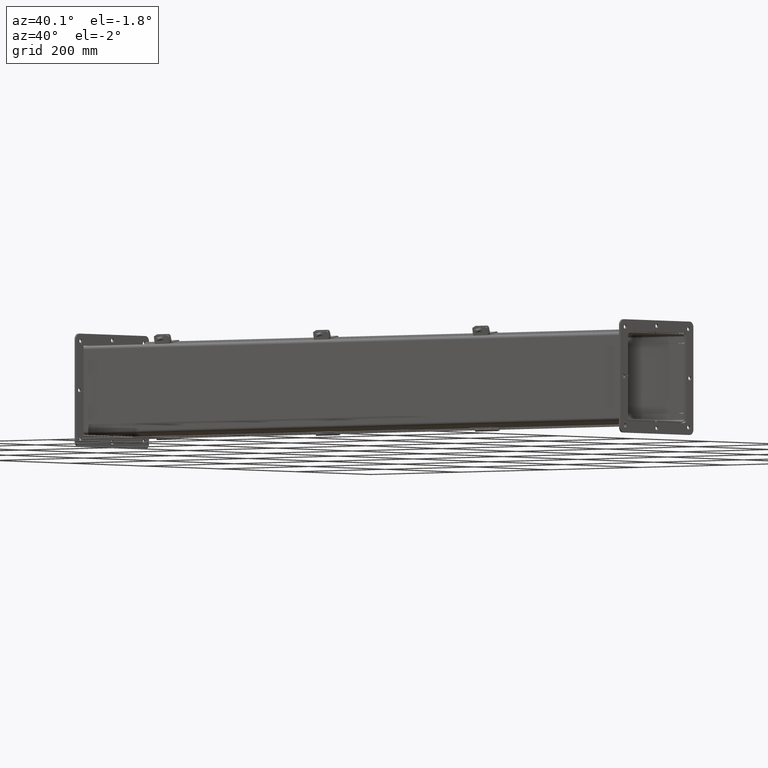
[diagram: clean part render]
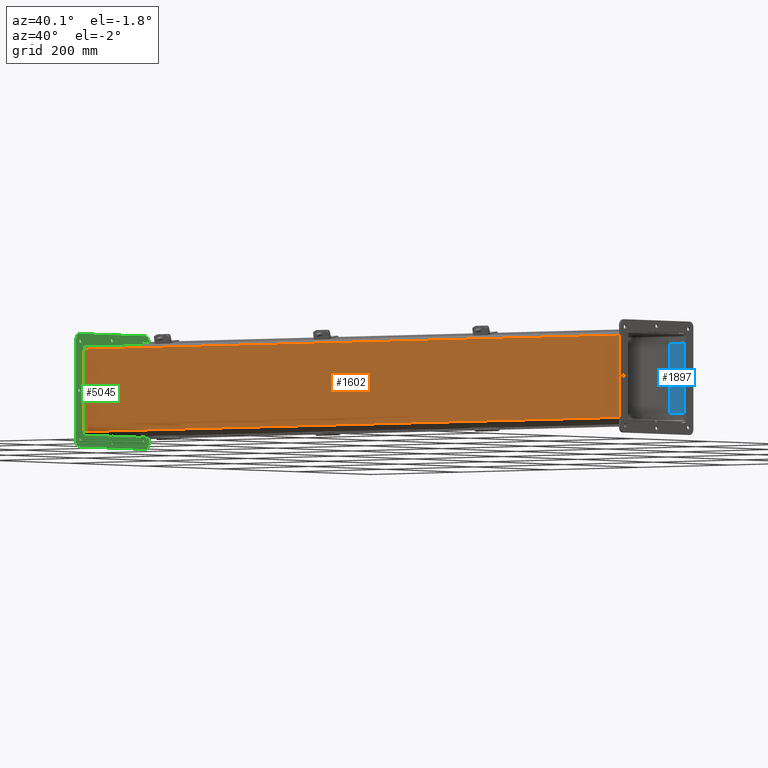
[diagram: same view with three faces highlighted in distinct colors, each labeled with its STEP entity id]
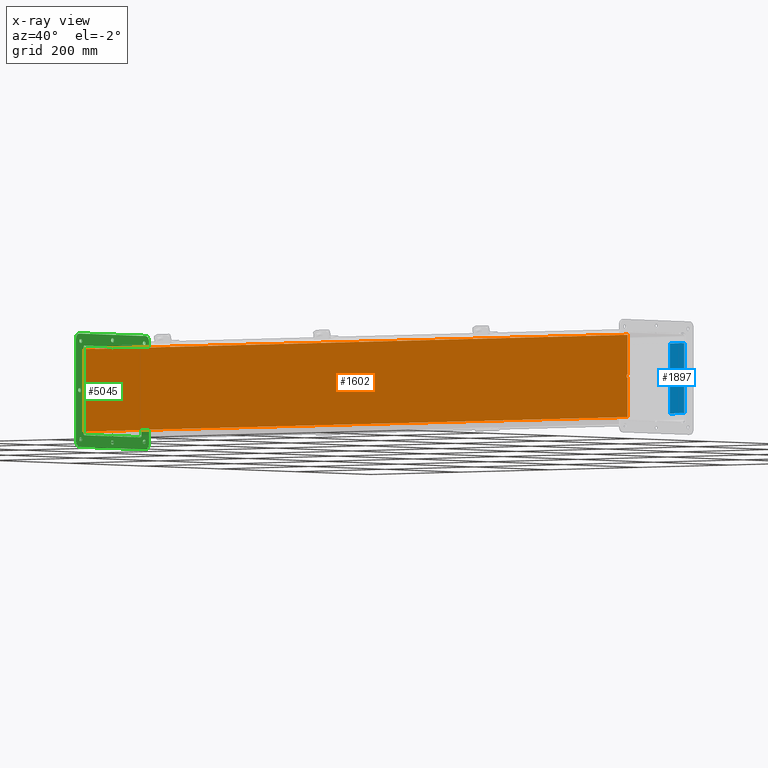
[diagram: x-ray of the same camera — body ghosted, the three highlighted faces saturated]
A machine part, auxiliary view with three faces highlighted in distinct colors.
The next image is the same camera in x-ray (body ghosted, the three faces saturated) — at least one of them is partly hidden behind the body in this view.
Their STEP definitions:

[orange] entity #1602 — the highlighted planar face has unit normal (-0, 1, -0).
#134=CARTESIAN_POINT('',(47.875000000000014,2.906250000000046,0.0));
#135=VERTEX_POINT('',#134);
#142=CARTESIAN_POINT('',(47.812500000000014,2.90625000000002,0.0));
#143=VERTEX_POINT('',#142);
#144=CARTESIAN_POINT('',(47.812500000000007,2.90625000000002,0.0));
#145=DIRECTION('',(1.0,4.263256E-013,0.0));
#146=VECTOR('',#145,0.0625);
#147=LINE('',#144,#146);
#148=EDGE_CURVE('',#143,#135,#147,.T.);
#174=CARTESIAN_POINT('',(47.812500000000014,3.093750000000019,0.0));
#175=VERTEX_POINT('',#174);
#182=CARTESIAN_POINT('',(47.875000000000014,3.093749999999993,0.0));
#183=VERTEX_POINT('',#182);
#184=CARTESIAN_POINT('',(47.875000000000007,3.093749999999992,0.0));
#185=DIRECTION('',(-1.0,4.263256E-013,0.0));
#186=VECTOR('',#185,0.0625);
#187=LINE('',#184,#186);
#188=EDGE_CURVE('',#183,#175,#187,.T.);
#211=CARTESIAN_POINT('',(47.812500000000014,3.093750000000019,0.0));
#212=DIRECTION('',(0.0,-1.0,0.0));
#213=VECTOR('',#212,0.1875);
#214=LINE('',#211,#213);
#215=EDGE_CURVE('',#175,#143,#214,.T.);
#236=CARTESIAN_POINT('',(0.062499999999994,2.906250000000037,0.0));
#237=VERTEX_POINT('',#236);
#244=CARTESIAN_POINT('',(-5.629268E-015,2.906250000000045,0.0));
#245=VERTEX_POINT('',#244);
#246=CARTESIAN_POINT('',(-5.329071E-015,2.906250000000045,0.0));
#247=DIRECTION('',(1.0,-1.350031E-013,0.0));
#248=VECTOR('',#247,0.0625);
#249=LINE('',#246,#248);
#250=EDGE_CURVE('',#245,#237,#249,.T.);
#276=CARTESIAN_POINT('',(-5.594825E-015,3.09375000000001,0.0));
#277=VERTEX_POINT('',#276);
#284=CARTESIAN_POINT('',(0.062499999999994,3.093750000000019,0.0));
#285=VERTEX_POINT('',#284);
#286=CARTESIAN_POINT('',(0.062499999999995,3.093750000000019,0.0));
#287=DIRECTION('',(-1.0,-1.350031E-013,0.0));
#288=VECTOR('',#287,0.0625);
#289=LINE('',#286,#288);
#290=EDGE_CURVE('',#285,#277,#289,.T.);
#313=CARTESIAN_POINT('',(0.062499999999993,2.906250000000037,0.0));
#314=DIRECTION('',(0.0,1.0,0.0));
#315=VECTOR('',#314,0.187499999999981);
#316=LINE('',#313,#315);
#317=EDGE_CURVE('',#237,#285,#316,.T.);
#329=CARTESIAN_POINT('',(47.875000000000007,5.769750000000006,-2.185478E-017));
#330=VERTEX_POINT('',#329);
#331=CARTESIAN_POINT('',(47.875000000000007,3.093749999999993,0.0));
#332=DIRECTION('',(0.0,1.0,0.0));
#333=VECTOR('',#332,2.676000000000014);
#334=LINE('',#331,#333);
#335=EDGE_CURVE('',#183,#330,#334,.T.);
#445=CARTESIAN_POINT('',(0.0,0.230249999999999,-2.185478E-017));
#446=VERTEX_POINT('',#445);
#447=CARTESIAN_POINT('',(-1.779565E-016,2.906250000000045,0.0));
#448=DIRECTION('',(0.0,-1.0,0.0));
#449=VECTOR('',#448,2.676000000000046);
#450=LINE('',#447,#449);
#451=EDGE_CURVE('',#245,#446,#450,.T.);
#983=CARTESIAN_POINT('',(-3.438498E-016,5.76975,-2.185478E-017));
#984=VERTEX_POINT('',#983);
#992=CARTESIAN_POINT('',(-3.532953E-016,5.76975,0.0));
#993=DIRECTION('',(0.0,-1.0,0.0));
#994=VECTOR('',#993,2.67599999999999);
#995=LINE('',#992,#994);
#996=EDGE_CURVE('',#984,#277,#995,.T.);
#1171=CARTESIAN_POINT('',(47.875000000000007,0.230249999999999,-2.185478E-017));
#1172=VERTEX_POINT('',#1171);
#1180=CARTESIAN_POINT('',(47.875000000000007,0.230249999999999,0.0));
#1181=DIRECTION('',(0.0,1.0,0.0));
#1182=VECTOR('',#1181,2.676000000000046);
#1183=LINE('',#1180,#1182);
#1184=EDGE_CURVE('',#1172,#135,#1183,.T.);
#1487=CARTESIAN_POINT('',(0.0,5.76975,0.0));
#1488=DIRECTION('',(1.0,0.0,0.0));
#1489=VECTOR('',#1488,47.875);
#1490=LINE('',#1487,#1489);
#1491=EDGE_CURVE('',#984,#330,#1490,.T.);
#1536=CARTESIAN_POINT('',(47.875,0.230249999999999,0.0));
#1537=DIRECTION('',(-1.0,0.0,0.0));
#1538=VECTOR('',#1537,47.875);
#1539=LINE('',#1536,#1538);
#1540=EDGE_CURVE('',#1172,#446,#1539,.T.);
#1583=CARTESIAN_POINT('',(23.937500000000007,3.000000000000002,0.0));
#1584=DIRECTION('',(0.0,0.0,1.0));
#1585=DIRECTION('',(1.0,0.0,0.0));
#1586=AXIS2_PLACEMENT_3D('',#1583,#1584,#1585);
#1587=PLANE('',#1586);
#1588=ORIENTED_EDGE('',*,*,#148,.T.);
#1589=ORIENTED_EDGE('',*,*,#1184,.F.);
#1590=ORIENTED_EDGE('',*,*,#1540,.T.);
#1591=ORIENTED_EDGE('',*,*,#451,.F.);
#1592=ORIENTED_EDGE('',*,*,#250,.T.);
#1593=ORIENTED_EDGE('',*,*,#317,.T.);
#1594=ORIENTED_EDGE('',*,*,#290,.T.);
#1595=ORIENTED_EDGE('',*,*,#996,.F.);
#1596=ORIENTED_EDGE('',*,*,#1491,.T.);
#1597=ORIENTED_EDGE('',*,*,#335,.F.);
#1598=ORIENTED_EDGE('',*,*,#188,.T.);
#1599=ORIENTED_EDGE('',*,*,#215,.T.);
#1600=EDGE_LOOP('',(#1588,#1589,#1590,#1591,#1592,#1593,#1594,#1595,#1596,#1597,#1598,#1599));
#1601=FACE_OUTER_BOUND('',#1600,.T.);
#1602=ADVANCED_FACE('',(#1601),#1587,.F.);

[blue] entity #1897 — the highlighted planar face has unit normal (-0, 1, -0).
#1765=CARTESIAN_POINT('',(-3.222723160624434,0.409223053840348,0.0));
#1766=VERTEX_POINT('',#1765);
#1773=CARTESIAN_POINT('',(-3.222723160624434,-0.840776946159652,0.0));
#1774=VERTEX_POINT('',#1773);
#1775=CARTESIAN_POINT('',(-3.222723160624434,-0.840776946159652,0.0));
#1776=DIRECTION('',(0.0,1.0,0.0));
#1777=VECTOR('',#1776,1.25);
#1778=LINE('',#1775,#1777);
#1779=EDGE_CURVE('',#1774,#1766,#1778,.T.);
#1803=CARTESIAN_POINT('',(1.496026839375567,0.409223053840349,0.0));
#1804=VERTEX_POINT('',#1803);
#1811=CARTESIAN_POINT('',(-3.222723160624434,0.409223053840348,0.0));
#1812=DIRECTION('',(1.0,0.0,0.0));
#1813=VECTOR('',#1812,4.718750000000001);
#1814=LINE('',#1811,#1813);
#1815=EDGE_CURVE('',#1766,#1804,#1814,.T.);
#1834=CARTESIAN_POINT('',(1.496026839375567,-0.840776946159652,0.0));
#1835=VERTEX_POINT('',#1834);
#1842=CARTESIAN_POINT('',(1.496026839375567,0.409223053840349,0.0));
#1843=DIRECTION('',(0.0,-1.0,0.0));
#1844=VECTOR('',#1843,1.25);
#1845=LINE('',#1842,#1844);
#1846=EDGE_CURVE('',#1804,#1835,#1845,.T.);
#1864=CARTESIAN_POINT('',(1.496026839375567,-0.840776946159652,0.0));
#1865=DIRECTION('',(-1.0,0.0,0.0));
#1866=VECTOR('',#1865,4.718750000000001);
#1867=LINE('',#1864,#1866);
#1868=EDGE_CURVE('',#1835,#1774,#1867,.T.);
#1886=CARTESIAN_POINT('',(-0.863348160624433,-0.215776946159652,0.0));
#1887=DIRECTION('',(0.0,0.0,1.0));
#1888=DIRECTION('',(1.0,0.0,0.0));
#1889=AXIS2_PLACEMENT_3D('',#1886,#1887,#1888);
#1890=PLANE('',#1889);
#1891=ORIENTED_EDGE('',*,*,#1868,.T.);
#1892=ORIENTED_EDGE('',*,*,#1779,.T.);
#1893=ORIENTED_EDGE('',*,*,#1815,.T.);
#1894=ORIENTED_EDGE('',*,*,#1846,.T.);
#1895=EDGE_LOOP('',(#1891,#1892,#1893,#1894));
#1896=FACE_OUTER_BOUND('',#1895,.T.);
#1897=ADVANCED_FACE('',(#1896),#1890,.F.);

[green] entity #5045 — the highlighted planar face has unit normal (-1, 0, -0).
#3977=CARTESIAN_POINT('',(-2.941625,-5.026600E-016,-2.185478E-017));
#3978=VERTEX_POINT('',#3977);
#3979=CARTESIAN_POINT('',(-3.015625,0.073999999999999,-2.185478E-017));
#3980=VERTEX_POINT('',#3979);
#3981=CARTESIAN_POINT('',(-2.941625,-5.026600E-016,0.0));
#3982=DIRECTION('',(-0.70710678118655,0.707106781186545,0.0));
#3983=VECTOR('',#3982,0.104651803615609);
#3984=LINE('',#3981,#3983);
#3985=EDGE_CURVE('',#3978,#3980,#3984,.T.);
#4017=CARTESIAN_POINT('',(-3.015625,-0.074,-2.185478E-017));
#4018=VERTEX_POINT('',#4017);
#4019=CARTESIAN_POINT('',(-3.015625,-0.074,0.0));
#4020=DIRECTION('',(0.70710678118655,0.707106781186545,0.0));
#4021=VECTOR('',#4020,0.104651803615609);
#4022=LINE('',#4019,#4021);
#4023=EDGE_CURVE('',#4018,#3978,#4022,.T.);
#4048=CARTESIAN_POINT('',(-0.074,3.015625,-4.370957E-017));
#4049=VERTEX_POINT('',#4048);
#4050=CARTESIAN_POINT('',(-3.496765E-016,2.941625000000001,-4.370957E-017));
#4051=VERTEX_POINT('',#4050);
#4052=CARTESIAN_POINT('',(-0.074,3.015625,0.0));
#4053=DIRECTION('',(0.707106781186548,-0.707106781186547,0.0));
#4054=VECTOR('',#4053,0.104651803615609);
#4055=LINE('',#4052,#4054);
#4056=EDGE_CURVE('',#4049,#4051,#4055,.T.);
#4088=CARTESIAN_POINT('',(0.074,3.015625,-4.370957E-017));
#4089=VERTEX_POINT('',#4088);
#4090=CARTESIAN_POINT('',(-3.496765E-016,2.941625000000001,0.0));
#4091=DIRECTION('',(0.707106781186548,0.707106781186547,0.0));
#4092=VECTOR('',#4091,0.104651803615609);
#4093=LINE('',#4090,#4092);
#4094=EDGE_CURVE('',#4051,#4089,#4093,.T.);
#4119=CARTESIAN_POINT('',(0.074,-3.015625000000001,0.0));
#4120=VERTEX_POINT('',#4119);
#4121=CARTESIAN_POINT('',(-3.241393E-016,-2.941625000000001,-2.185478E-017));
#4122=VERTEX_POINT('',#4121);
#4123=CARTESIAN_POINT('',(0.074,-3.015625000000001,0.0));
#4124=DIRECTION('',(-0.707106781186548,0.707106781186547,0.0));
#4125=VECTOR('',#4124,0.104651803615609);
#4126=LINE('',#4123,#4125);
#4127=EDGE_CURVE('',#4120,#4122,#4126,.T.);
#4159=CARTESIAN_POINT('',(-0.074,-3.015625000000001,-2.185478E-017));
#4160=VERTEX_POINT('',#4159);
#4161=CARTESIAN_POINT('',(-3.278218E-016,-2.941625000000001,0.0));
#4162=DIRECTION('',(-0.707106781186548,-0.707106781186547,0.0));
#4163=VECTOR('',#4162,0.104651803615609);
#4164=LINE('',#4161,#4163);
#4165=EDGE_CURVE('',#4122,#4160,#4164,.T.);
#4191=CARTESIAN_POINT('',(-3.015625000000001,2.890625,0.0));
#4192=VERTEX_POINT('',#4191);
#4193=CARTESIAN_POINT('',(-3.015625000000001,2.890625,0.0));
#4194=DIRECTION('',(0.0,-1.0,0.0));
#4195=VECTOR('',#4194,2.816625000000001);
#4196=LINE('',#4193,#4195);
#4197=EDGE_CURVE('',#4192,#3980,#4196,.T.);
#4230=CARTESIAN_POINT('',(-3.015625,-2.890625,0.0));
#4231=VERTEX_POINT('',#4230);
#4238=CARTESIAN_POINT('',(-3.015625,-0.074,0.0));
#4239=DIRECTION('',(0.0,-1.0,0.0));
#4240=VECTOR('',#4239,2.816625);
#4241=LINE('',#4238,#4240);
#4242=EDGE_CURVE('',#4018,#4231,#4241,.T.);
#4253=CARTESIAN_POINT('',(2.890625,3.015625,0.0));
#4254=VERTEX_POINT('',#4253);
#4255=CARTESIAN_POINT('',(2.890625,3.015625,0.0));
#4256=DIRECTION('',(-1.0,0.0,0.0));
#4257=VECTOR('',#4256,2.816625);
#4258=LINE('',#4255,#4257);
#4259=EDGE_CURVE('',#4254,#4089,#4258,.T.);
#4292=CARTESIAN_POINT('',(-2.890625000000001,3.015625000000001,0.0));
#4293=VERTEX_POINT('',#4292);
#4300=CARTESIAN_POINT('',(-0.074,3.015625,0.0));
#4301=DIRECTION('',(-1.0,0.0,0.0));
#4302=VECTOR('',#4301,2.816625000000001);
#4303=LINE('',#4300,#4302);
#4304=EDGE_CURVE('',#4049,#4293,#4303,.T.);
#4323=CARTESIAN_POINT('',(2.890624999999999,-3.015625,0.0));
#4324=VERTEX_POINT('',#4323);
#4331=CARTESIAN_POINT('',(0.074,-3.015625,0.0));
#4332=DIRECTION('',(1.0,0.0,0.0));
#4333=VECTOR('',#4332,2.816624999999999);
#4334=LINE('',#4331,#4333);
#4335=EDGE_CURVE('',#4120,#4324,#4334,.T.);
#4346=CARTESIAN_POINT('',(-2.890625,-3.015625,0.0));
#4347=VERTEX_POINT('',#4346);
#4348=CARTESIAN_POINT('',(-2.890625,-3.015625,0.0));
#4349=DIRECTION('',(1.0,0.0,0.0));
#4350=VECTOR('',#4349,2.816625);
#4351=LINE('',#4348,#4350);
#4352=EDGE_CURVE('',#4347,#4160,#4351,.T.);
#4376=CARTESIAN_POINT('',(0.140625000000001,-3.437500000000001,0.0));
#4377=VERTEX_POINT('',#4376);
#4378=CARTESIAN_POINT('',(7.061474E-016,-3.437500000000001,0.0));
#4379=DIRECTION('',(0.0,0.0,1.0));
#4380=DIRECTION('',(-1.0,0.0,0.0));
#4381=AXIS2_PLACEMENT_3D('',#4378,#4379,#4380);
#4382=CIRCLE('',#4381,0.140625);
#4383=EDGE_CURVE('',#4377,#4377,#4382,.T.);
#4404=CARTESIAN_POINT('',(-3.296875000000001,1.722160E-017,0.0));
#4405=VERTEX_POINT('',#4404);
#4406=CARTESIAN_POINT('',(-3.437500000000001,0.0,0.0));
#4407=DIRECTION('',(0.0,0.0,1.0));
#4408=DIRECTION('',(-1.0,0.0,0.0));
#4409=AXIS2_PLACEMENT_3D('',#4406,#4407,#4408);
#4410=CIRCLE('',#4409,0.140625);
#4411=EDGE_CURVE('',#4405,#4405,#4410,.T.);
#4432=CARTESIAN_POINT('',(0.140624999999999,3.4375,0.0));
#4433=VERTEX_POINT('',#4432);
#4434=CARTESIAN_POINT('',(-1.398714E-015,3.4375,0.0));
#4435=DIRECTION('',(0.0,0.0,1.0));
#4436=DIRECTION('',(-1.0,0.0,0.0));
#4437=AXIS2_PLACEMENT_3D('',#4434,#4435,#4436);
#4438=CIRCLE('',#4437,0.140625);
#4439=EDGE_CURVE('',#4433,#4433,#4438,.T.);
#4460=CARTESIAN_POINT('',(3.578125000000001,2.821436E-015,0.0));
#4461=VERTEX_POINT('',#4460);
#4462=CARTESIAN_POINT('',(3.437500000000001,2.804215E-015,0.0));
#4463=DIRECTION('',(0.0,0.0,1.0));
#4464=DIRECTION('',(-1.0,0.0,0.0));
#4465=AXIS2_PLACEMENT_3D('',#4462,#4463,#4464);
#4466=CIRCLE('',#4465,0.140625);
#4467=EDGE_CURVE('',#4461,#4461,#4466,.T.);
#4488=CARTESIAN_POINT('',(3.453124999999998,3.312500000000001,0.0));
#4489=VERTEX_POINT('',#4488);
#4490=CARTESIAN_POINT('',(3.312499999999997,3.312500000000001,0.0));
#4491=DIRECTION('',(0.0,0.0,1.0));
#4492=DIRECTION('',(-1.0,0.0,0.0));
#4493=AXIS2_PLACEMENT_3D('',#4490,#4491,#4492);
#4494=CIRCLE('',#4493,0.140625);
#4495=EDGE_CURVE('',#4489,#4489,#4494,.T.);
#4516=CARTESIAN_POINT('',(3.453125,-3.3125,0.0));
#4517=VERTEX_POINT('',#4516);
#4518=CARTESIAN_POINT('',(3.3125,-3.3125,0.0));
#4519=DIRECTION('',(0.0,0.0,1.0));
#4520=DIRECTION('',(-1.0,0.0,0.0));
#4521=AXIS2_PLACEMENT_3D('',#4518,#4519,#4520);
#4522=CIRCLE('',#4521,0.140625);
#4523=EDGE_CURVE('',#4517,#4517,#4522,.T.);
#4544=CARTESIAN_POINT('',(-3.171875000000003,3.312500000000001,0.0));
#4545=VERTEX_POINT('',#4544);
#4546=CARTESIAN_POINT('',(-3.312500000000003,3.312500000000001,0.0));
#4547=DIRECTION('',(0.0,0.0,1.0));
#4548=DIRECTION('',(-1.0,0.0,0.0));
#4549=AXIS2_PLACEMENT_3D('',#4546,#4547,#4548);
#4550=CIRCLE('',#4549,0.140625);
#4551=EDGE_CURVE('',#4545,#4545,#4550,.T.);
#4572=CARTESIAN_POINT('',(-3.171875,-3.3125,0.0));
#4573=VERTEX_POINT('',#4572);
#4574=CARTESIAN_POINT('',(-3.3125,-3.3125,0.0));
#4575=DIRECTION('',(0.0,0.0,1.0));
#4576=DIRECTION('',(-1.0,0.0,0.0));
#4577=AXIS2_PLACEMENT_3D('',#4574,#4575,#4576);
#4578=CIRCLE('',#4577,0.140625);
#4579=EDGE_CURVE('',#4573,#4573,#4578,.T.);
#4608=CARTESIAN_POINT('',(-2.890625000000001,2.890625,0.0));
#4609=DIRECTION('',(0.0,0.0,1.0));
#4610=DIRECTION('',(0.0,1.0,0.0));
#4611=AXIS2_PLACEMENT_3D('',#4608,#4609,#4610);
#4612=CIRCLE('',#4611,0.125);
#4613=EDGE_CURVE('',#4293,#4192,#4612,.T.);
#4634=CARTESIAN_POINT('',(3.015625,2.890625,0.0));
#4635=VERTEX_POINT('',#4634);
#4636=CARTESIAN_POINT('',(2.890625,2.890625,0.0));
#4637=DIRECTION('',(0.0,0.0,1.0));
#4638=DIRECTION('',(1.0,0.0,0.0));
#4639=AXIS2_PLACEMENT_3D('',#4636,#4637,#4638);
#4640=CIRCLE('',#4639,0.125);
#4641=EDGE_CURVE('',#4635,#4254,#4640,.T.);
#4666=CARTESIAN_POINT('',(3.015625,-2.890625,0.0));
#4667=VERTEX_POINT('',#4666);
#4668=CARTESIAN_POINT('',(3.015625000000001,-2.890625,0.0));
#4669=DIRECTION('',(0.0,1.0,0.0));
#4670=VECTOR('',#4669,5.78125);
#4671=LINE('',#4668,#4670);
#4672=EDGE_CURVE('',#4667,#4635,#4671,.T.);
#4696=CARTESIAN_POINT('',(2.890624999999999,-2.890625,0.0));
#4697=DIRECTION('',(0.0,0.0,1.0));
#4698=DIRECTION('',(0.0,-1.0,0.0));
#4699=AXIS2_PLACEMENT_3D('',#4696,#4697,#4698);
#4700=CIRCLE('',#4699,0.125);
#4701=EDGE_CURVE('',#4324,#4667,#4700,.T.);
#4720=CARTESIAN_POINT('',(-2.890625,-2.890625,0.0));
#4721=DIRECTION('',(0.0,0.0,1.0));
#4722=DIRECTION('',(-1.0,0.0,0.0));
#4723=AXIS2_PLACEMENT_3D('',#4720,#4721,#4722);
#4724=CIRCLE('',#4723,0.125);
#4725=EDGE_CURVE('',#4231,#4347,#4724,.T.);
#4747=CARTESIAN_POINT('',(-3.4375,3.8125,0.0));
#4748=VERTEX_POINT('',#4747);
#4755=CARTESIAN_POINT('',(-3.8125,3.4375,0.0));
#4756=VERTEX_POINT('',#4755);
#4757=CARTESIAN_POINT('',(-3.4375,3.4375,0.0));
#4758=DIRECTION('',(0.0,0.0,1.0));
#4759=DIRECTION('',(0.0,1.0,0.0));
#4760=AXIS2_PLACEMENT_3D('',#4757,#4758,#4759);
#4761=CIRCLE('',#4760,0.375000000000001);
#4762=EDGE_CURVE('',#4748,#4756,#4761,.T.);
#4786=CARTESIAN_POINT('',(3.4375,3.8125,0.0));
#4787=VERTEX_POINT('',#4786);
#4794=CARTESIAN_POINT('',(3.437499999999999,3.8125,0.0));
#4795=DIRECTION('',(-1.0,0.0,0.0));
#4796=VECTOR('',#4795,6.875);
#4797=LINE('',#4794,#4796);
#4798=EDGE_CURVE('',#4787,#4748,#4797,.T.);
#4818=CARTESIAN_POINT('',(3.8125,3.4375,0.0));
#4819=VERTEX_POINT('',#4818);
#4826=CARTESIAN_POINT('',(3.4375,3.4375,0.0));
#4827=DIRECTION('',(0.0,0.0,1.0));
#4828=DIRECTION('',(1.0,0.0,0.0));
#4829=AXIS2_PLACEMENT_3D('',#4826,#4827,#4828);
#4830=CIRCLE('',#4829,0.375000000000001);
#4831=EDGE_CURVE('',#4819,#4787,#4830,.T.);
#4850=CARTESIAN_POINT('',(3.812500000000001,-3.4375,0.0));
#4851=VERTEX_POINT('',#4850);
#4858=CARTESIAN_POINT('',(3.812500000000001,-3.4375,0.0));
#4859=DIRECTION('',(0.0,1.0,0.0));
#4860=VECTOR('',#4859,6.875);
#4861=LINE('',#4858,#4860);
#4862=EDGE_CURVE('',#4851,#4819,#4861,.T.);
#4882=CARTESIAN_POINT('',(3.4375,-3.8125,0.0));
#4883=VERTEX_POINT('',#4882);
#4890=CARTESIAN_POINT('',(3.4375,-3.4375,0.0));
#4891=DIRECTION('',(0.0,0.0,1.0));
#4892=DIRECTION('',(0.0,-1.0,0.0));
#4893=AXIS2_PLACEMENT_3D('',#4890,#4891,#4892);
#4894=CIRCLE('',#4893,0.375);
#4895=EDGE_CURVE('',#4883,#4851,#4894,.T.);
#4914=CARTESIAN_POINT('',(-3.437499999999999,-3.812500000000001,0.0));
#4915=VERTEX_POINT('',#4914);
#4922=CARTESIAN_POINT('',(-3.437499999999999,-3.812500000000001,0.0));
#4923=DIRECTION('',(1.0,0.0,0.0));
#4924=VECTOR('',#4923,6.874999999999998);
#4925=LINE('',#4922,#4924);
#4926=EDGE_CURVE('',#4915,#4883,#4925,.T.);
#4946=CARTESIAN_POINT('',(-3.8125,-3.4375,0.0));
#4947=VERTEX_POINT('',#4946);
#4954=CARTESIAN_POINT('',(-3.437499999999999,-3.4375,0.0));
#4955=DIRECTION('',(0.0,0.0,1.0));
#4956=DIRECTION('',(-1.0,0.0,0.0));
#4957=AXIS2_PLACEMENT_3D('',#4954,#4955,#4956);
#4958=CIRCLE('',#4957,0.375000000000001);
#4959=EDGE_CURVE('',#4947,#4915,#4958,.T.);
#4977=CARTESIAN_POINT('',(-3.8125,3.437499999999999,0.0));
#4978=DIRECTION('',(0.0,-1.0,0.0));
#4979=VECTOR('',#4978,6.875);
#4980=LINE('',#4977,#4979);
#4981=EDGE_CURVE('',#4756,#4947,#4980,.T.);
#4987=CARTESIAN_POINT('',(-6.556435E-017,-2.185478E-016,0.0));
#4988=DIRECTION('',(0.0,0.0,1.0));
#4989=DIRECTION('',(1.0,0.0,0.0));
#4990=AXIS2_PLACEMENT_3D('',#4987,#4988,#4989);
#4991=PLANE('',#4990);
#4992=ORIENTED_EDGE('',*,*,#4981,.F.);
#4993=ORIENTED_EDGE('',*,*,#4762,.F.);
#4994=ORIENTED_EDGE('',*,*,#4798,.F.);
#4995=ORIENTED_EDGE('',*,*,#4831,.F.);
#4996=ORIENTED_EDGE('',*,*,#4862,.F.);
#4997=ORIENTED_EDGE('',*,*,#4895,.F.);
#4998=ORIENTED_EDGE('',*,*,#4926,.F.);
#4999=ORIENTED_EDGE('',*,*,#4959,.F.);
#5000=EDGE_LOOP('',(#4992,#4993,#4994,#4995,#4996,#4997,#4998,#4999));
#5001=FACE_OUTER_BOUND('',#5000,.T.);
#5002=ORIENTED_EDGE('',*,*,#4383,.T.);
#5003=EDGE_LOOP('',(#5002));
#5004=FACE_BOUND('',#5003,.T.);
#5005=ORIENTED_EDGE('',*,*,#4411,.T.);
#5006=EDGE_LOOP('',(#5005));
#5007=FACE_BOUND('',#5006,.T.);
#5008=ORIENTED_EDGE('',*,*,#4439,.T.);
#5009=EDGE_LOOP('',(#5008));
#5010=FACE_BOUND('',#5009,.T.);
#5011=ORIENTED_EDGE('',*,*,#4467,.T.);
#5012=EDGE_LOOP('',(#5011));
#5013=FACE_BOUND('',#5012,.T.);
#5014=ORIENTED_EDGE('',*,*,#4495,.T.);
#5015=EDGE_LOOP('',(#5014));
#5016=FACE_BOUND('',#5015,.T.);
#5017=ORIENTED_EDGE('',*,*,#4523,.T.);
#5018=EDGE_LOOP('',(#5017));
#5019=FACE_BOUND('',#5018,.T.);
#5020=ORIENTED_EDGE('',*,*,#4551,.T.);
#5021=EDGE_LOOP('',(#5020));
#5022=FACE_BOUND('',#5021,.T.);
#5023=ORIENTED_EDGE('',*,*,#4579,.T.);
#5024=EDGE_LOOP('',(#5023));
#5025=FACE_BOUND('',#5024,.T.);
#5026=ORIENTED_EDGE('',*,*,#4613,.T.);
#5027=ORIENTED_EDGE('',*,*,#4197,.T.);
#5028=ORIENTED_EDGE('',*,*,#3985,.F.);
#5029=ORIENTED_EDGE('',*,*,#4023,.F.);
#5030=ORIENTED_EDGE('',*,*,#4242,.T.);
#5031=ORIENTED_EDGE('',*,*,#4725,.T.);
#5032=ORIENTED_EDGE('',*,*,#4352,.T.);
#5033=ORIENTED_EDGE('',*,*,#4165,.F.);
#5034=ORIENTED_EDGE('',*,*,#4127,.F.);
#5035=ORIENTED_EDGE('',*,*,#4335,.T.);
#5036=ORIENTED_EDGE('',*,*,#4701,.T.);
#5037=ORIENTED_EDGE('',*,*,#4672,.T.);
#5038=ORIENTED_EDGE('',*,*,#4641,.T.);
#5039=ORIENTED_EDGE('',*,*,#4259,.T.);
#5040=ORIENTED_EDGE('',*,*,#4094,.F.);
#5041=ORIENTED_EDGE('',*,*,#4056,.F.);
#5042=ORIENTED_EDGE('',*,*,#4304,.T.);
#5043=EDGE_LOOP('',(#5026,#5027,#5028,#5029,#5030,#5031,#5032,#5033,#5034,#5035,#5036,#5037,#5038,#5039,#5040,#5041,#5042));
#5044=FACE_BOUND('',#5043,.T.);
#5045=ADVANCED_FACE('',(#5001,#5004,#5007,#5010,#5013,#5016,#5019,#5022,#5025,#5044),#4991,.F.);